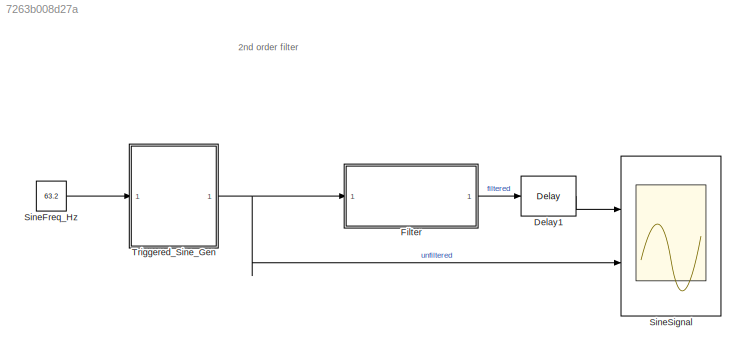
MODEL slx_7263b008d27a
KIND model
CONFIG AbsTol = auto
CONFIG EnableMultiTasking = off
CONFIG FixedStep = 1e-3
CONFIG MaxStep = auto
CONFIG MinStep = auto
CONFIG RelTol = 1e-3
CONFIG SampleTimeConstraint = Unconstrained
CONFIG SolverName = FixedStepDiscrete
CONFIG StartTime = 0.0
CONFIG StopTime = 0.5
BLOCK [Delay] Delay1
  DelayLength = 1
  InitialCondition = 0
  InputPortMap = u0
  Ports = [1, 1]
  UseCircularBuffer = on
  UserDataPersistent = on
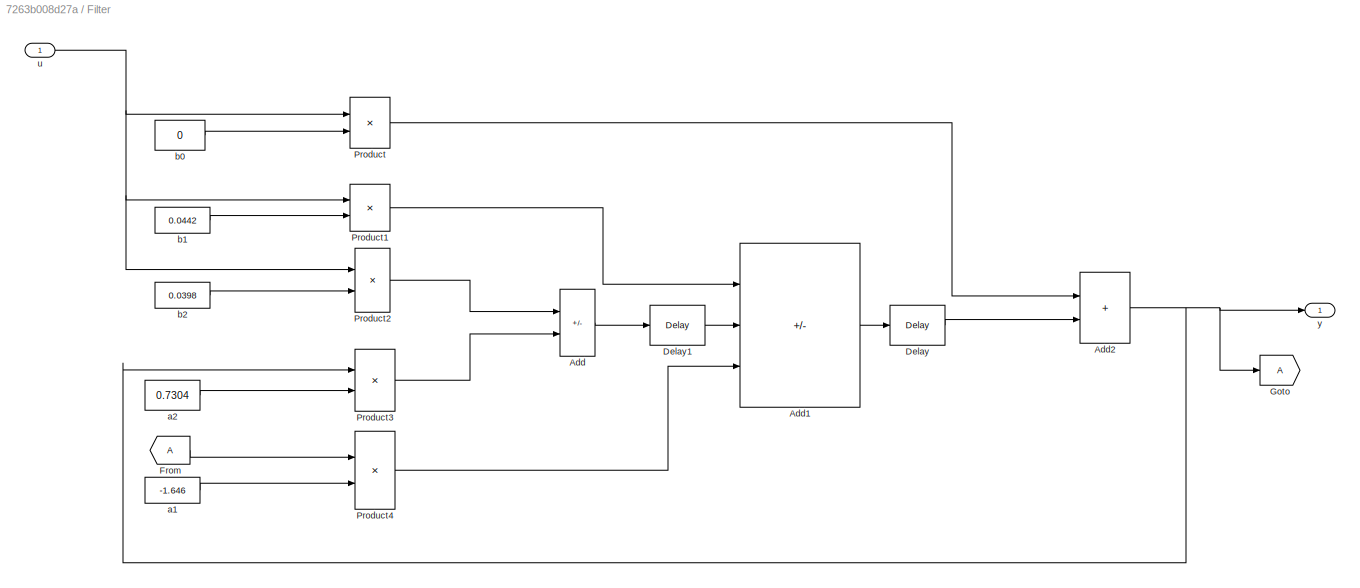
BLOCK [SubSystem] Filter
  Ports = [1, 1]
  RequestExecContextInheritance = off
BLOCK [Sum] Filter/Add
  IconShape = rectangular
  Inputs = +-
  Ports = [2, 1]
BLOCK [Sum] Filter/Add1
  IconShape = rectangular
  Inputs = ++-
  Ports = [3, 1]
BLOCK [Sum] Filter/Add2
  IconShape = rectangular
  Ports = [2, 1]
BLOCK [Delay] Filter/Delay
  DelayLength = 1
  InitialCondition = 0
  InputPortMap = u0
  Ports = [1, 1]
  UseCircularBuffer = on
  UserDataPersistent = on
BLOCK [Delay] Filter/Delay1
  DelayLength = 1
  InitialCondition = 0
  InputPortMap = u0
  Ports = [1, 1]
  UseCircularBuffer = on
  UserDataPersistent = on
BLOCK [From] Filter/From
BLOCK [Goto] Filter/Goto
BLOCK [Product] Filter/Product
  Ports = [2, 1]
BLOCK [Product] Filter/Product1
  Ports = [2, 1]
BLOCK [Product] Filter/Product2
  Ports = [2, 1]
BLOCK [Product] Filter/Product3
  Ports = [2, 1]
BLOCK [Product] Filter/Product4
  Ports = [2, 1]
BLOCK [Constant] Filter/a1
  Value = -1.646
BLOCK [Constant] Filter/a2
  Value = 0.7304
BLOCK [Constant] Filter/b0
  Value = 0
BLOCK [Constant] Filter/b1
  Value = 0.0442
BLOCK [Constant] Filter/b2
  Value = 0.0398
BLOCK [Inport] Filter/u
BLOCK [Outport] Filter/y
BLOCK [Constant] SineFreq_Hz
  Value = 63.2
BLOCK [Scope] SineSignal
  Floating = off
  NumInputPorts = 2
  Ports = [2]
  ScopeSpecificationString = Simulink.scopes.TimeScopeBlockCfg('CurrentConfiguration', extmgr.ConfigurationSet(extmgr.Configuration('Core','General UI',true),extmgr.Configuration('Core','Source UI',true),extmgr.Configuration('Sources','WiredSimulink',true),extmgr.Configuration('Visuals','Time Domain',true,'SerializedDisplays',{struct('MinYLimReal','-1.25','MaxYLimReal','1.25','YLabelReal','','MinYLimMag','0.00000','MaxYLimMag...<+1626ch>
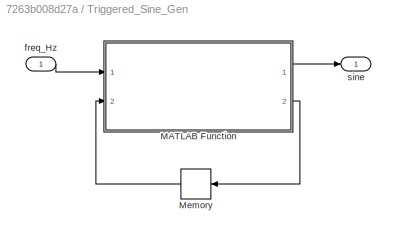
BLOCK [SubSystem] Triggered_Sine_Gen
  Ports = [1, 1]
  RequestExecContextInheritance = off
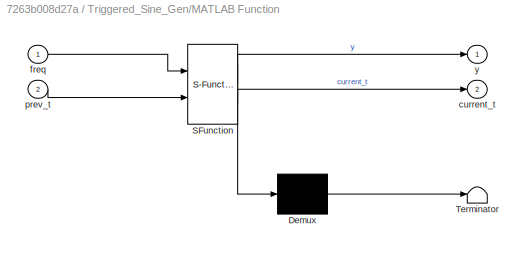
BLOCK [SubSystem] Triggered_Sine_Gen/MATLAB Function
  ErrorFcn = Stateflow.Translate.translate
  PermitHierarchicalResolution = ExplicitOnly
  Ports = [2, 2]
  RequestExecContextInheritance = off
  SFBlockType = MATLAB Function
  TreatAsAtomicUnit = on
BLOCK [Demux] Triggered_Sine_Gen/MATLAB Function/ Demux 
  Outputs = 1
  Ports = [1, 1]
BLOCK [S-Function] Triggered_Sine_Gen/MATLAB Function/ SFunction 
  EnableBusSupport = on
  FunctionName = sf_sfun
  PortCounts = [2 3]
  Ports = [2, 3]
  SFcnIsStateOwnerBlock = off
  SFunctionDeploymentMode = off
  Tag = Stateflow S-Function 2
BLOCK [Terminator] Triggered_Sine_Gen/MATLAB Function/ Terminator 
BLOCK [Outport] Triggered_Sine_Gen/MATLAB Function/current_t
  Port = 2
BLOCK [Inport] Triggered_Sine_Gen/MATLAB Function/freq
BLOCK [Inport] Triggered_Sine_Gen/MATLAB Function/prev_t
  Port = 2
BLOCK [Outport] Triggered_Sine_Gen/MATLAB Function/y
BLOCK [Memory] Triggered_Sine_Gen/Memory
  InheritSampleTime = on
  NameLocation = top
BLOCK [Inport] Triggered_Sine_Gen/freq_Hz
BLOCK [Outport] Triggered_Sine_Gen/sine
ANNOTATION (root): 2nd order filter
LINE Delay1:1 -> SineSignal:1
LINE Filter/Add1:1 -> Filter/Delay:1
NET Filter/Add2:1 -> Filter/Goto:1, Filter/Product3:1, Filter/y:1
LINE Filter/Add:1 -> Filter/Delay1:1
LINE Filter/Delay1:1 -> Filter/Add1:2
LINE Filter/Delay:1 -> Filter/Add2:2
LINE Filter/From:1 -> Filter/Product4:1
LINE Filter/Product1:1 -> Filter/Add1:1
LINE Filter/Product2:1 -> Filter/Add:1
LINE Filter/Product3:1 -> Filter/Add:2
LINE Filter/Product4:1 -> Filter/Add1:3
LINE Filter/Product:1 -> Filter/Add2:1
LINE Filter/a1:1 -> Filter/Product4:2
LINE Filter/a2:1 -> Filter/Product3:2
LINE Filter/b0:1 -> Filter/Product:2
LINE Filter/b1:1 -> Filter/Product1:2
LINE Filter/b2:1 -> Filter/Product2:2
NET Filter/u:1 -> Filter/Product1:1, Filter/Product2:1, Filter/Product:1
LINE Filter:1 -> Delay1:1
LINE SineFreq_Hz:1 -> Triggered_Sine_Gen:1
LINE Triggered_Sine_Gen/MATLAB Function:1 -> Triggered_Sine_Gen/sine:1
LINE Triggered_Sine_Gen/MATLAB Function:2 -> Triggered_Sine_Gen/Memory:1
LINE Triggered_Sine_Gen/Memory:1 -> Triggered_Sine_Gen/MATLAB Function:2
LINE Triggered_Sine_Gen/freq_Hz:1 -> Triggered_Sine_Gen/MATLAB Function:1
NET Triggered_Sine_Gen:1 -> Filter:1, SineSignal:2
note: NET lines group one-source signal fan-out (src -> all destinations, sorted); 1:1 wires keep LINE
CHART Triggered_Sine_Gen/MATLAB Function states=1 transitions=1
  STATE_LABEL 'eML_blk_kernel()'
  STATE_LABEL 'SCRIPT:\nfunction [y, current_t] = fcn(freq, prev_t)\n\ny = sin(prev_t*0.001*pi*2*freq)\nif(prev_t < 1e6)\n    current_t=prev_t+1;\nelse\n    current_t=0;\nend\n'
CHART  states=0 transitions=0
